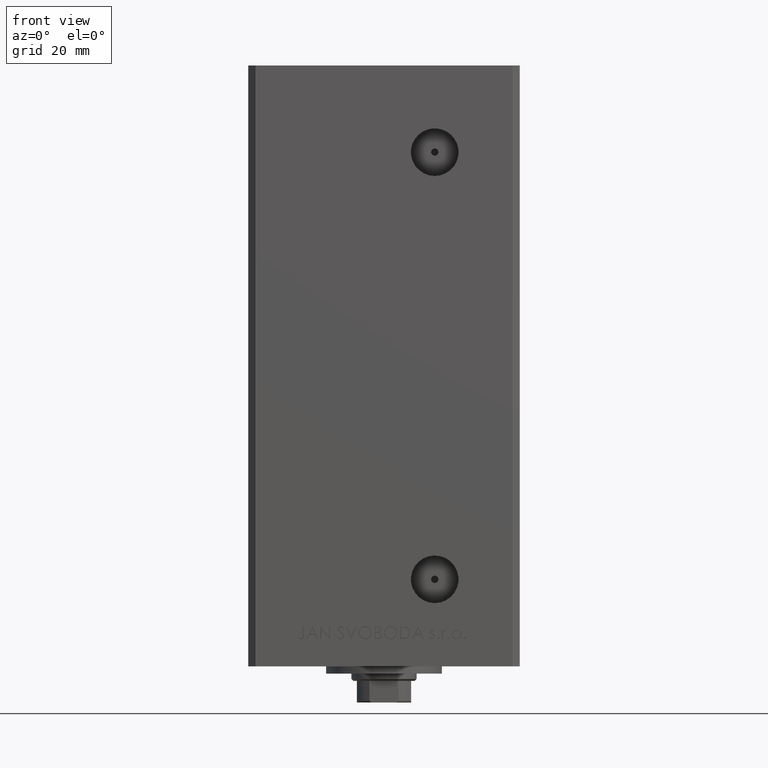
[diagram: clean part render]
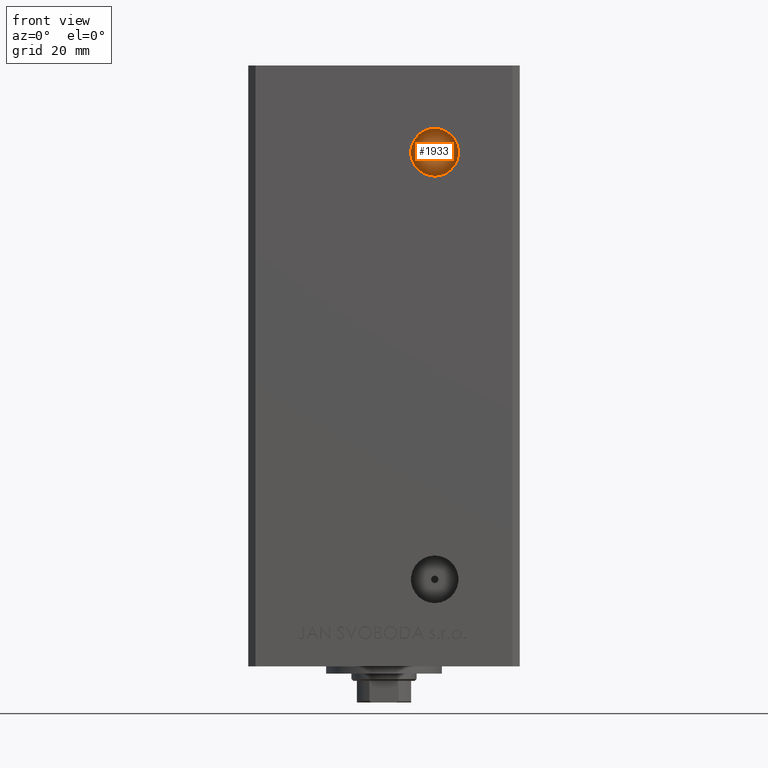
[diagram: same view with one face highlighted and labeled with its STEP entity id]
A machine part, front view. The second image highlights one B-rep face of the part: STEP entity #1933.
In plain terms, the highlighted planar face has unit normal (0, -1, 0).
Its self-contained STEP definition (entity closure, byte-faithful):
#794 = CARTESIAN_POINT ( 'NONE',  ( 13.99999999999999112, -19.50000000000000355, 126.0000000000000000 ) ) ;
#991 = CIRCLE ( 'NONE', #35476, 6.580000000000002736 ) ;
#1933 = ADVANCED_FACE ( 'NONE', ( #22465, #11414 ), #14442, .T. ) ;
#5692 = CARTESIAN_POINT ( 'NONE',  ( 13.99999999999999112, -19.50000000000000355, 128.0000000000000000 ) ) ;
#7795 = EDGE_CURVE ( 'NONE', #26949, #19409, #16047, .T. ) ;
#8165 = EDGE_LOOP ( 'NONE', ( #35556, #11257 ) ) ;
#10299 = CARTESIAN_POINT ( 'NONE',  ( 13.99999999999999112, -19.50000000000000355, 127.0000000000000000 ) ) ;
#10680 = DIRECTION ( 'NONE',  ( 0.000000000000000000, -0.000000000000000000, -1.000000000000000000 ) ) ;
#11019 = VERTEX_POINT ( 'NONE', #29560 ) ;
#11257 = ORIENTED_EDGE ( 'NONE', *, *, #35711, .F. ) ;
#11414 = FACE_OUTER_BOUND ( 'NONE', #8165, .T. ) ;
#13810 = EDGE_LOOP ( 'NONE', ( #31095, #27450 ) ) ;
#14442 = PLANE ( 'NONE',  #20004 ) ;
#15000 = AXIS2_PLACEMENT_3D ( 'NONE', #37875, #49198, #18788 ) ;
#15473 = EDGE_CURVE ( 'NONE', #19409, #26949, #15780, .T. ) ;
#15780 = CIRCLE ( 'NONE', #15000, 1.000000000000000888 ) ;
#16047 = CIRCLE ( 'NONE', #43345, 1.000000000000000888 ) ;
#18788 = DIRECTION ( 'NONE',  ( 0.000000000000000000, 0.000000000000000000, -1.000000000000000000 ) ) ;
#19409 = VERTEX_POINT ( 'NONE', #5692 ) ;
#20004 = AXIS2_PLACEMENT_3D ( 'NONE', #29773, #30016, #10680 ) ;
#20624 = CARTESIAN_POINT ( 'NONE',  ( 13.99999999999999112, -19.50000000000000355, 120.4200000000000017 ) ) ;
#22465 = FACE_BOUND ( 'NONE', #13810, .T. ) ;
#24535 = CARTESIAN_POINT ( 'NONE',  ( 13.99999999999999112, -19.50000000000000355, 127.0000000000000000 ) ) ;
#24779 = DIRECTION ( 'NONE',  ( 0.000000000000000000, 0.000000000000000000, -1.000000000000000000 ) ) ;
#26949 = VERTEX_POINT ( 'NONE', #794 ) ;
#26982 = VERTEX_POINT ( 'NONE', #20624 ) ;
#27450 = ORIENTED_EDGE ( 'NONE', *, *, #15473, .F. ) ;
#28425 = CARTESIAN_POINT ( 'NONE',  ( 13.99999999999999112, -19.50000000000000355, 127.0000000000000000 ) ) ;
#29560 = CARTESIAN_POINT ( 'NONE',  ( 13.99999999999999112, -19.50000000000000355, 133.5800000000000125 ) ) ;
#29773 = CARTESIAN_POINT ( 'NONE',  ( 0.000000000000000000, -19.50000000000000355, 0.000000000000000000 ) ) ;
#30016 = DIRECTION ( 'NONE',  ( 0.000000000000000000, -1.000000000000000000, 0.000000000000000000 ) ) ;
#30765 = CIRCLE ( 'NONE', #37178, 6.580000000000002736 ) ;
#31095 = ORIENTED_EDGE ( 'NONE', *, *, #7795, .F. ) ;
#31922 = EDGE_CURVE ( 'NONE', #26982, #11019, #991, .T. ) ;
#32204 = DIRECTION ( 'NONE',  ( -0.000000000000000000, 1.000000000000000000, -0.000000000000000000 ) ) ;
#35476 = AXIS2_PLACEMENT_3D ( 'NONE', #24535, #35844, #24779 ) ;
#35556 = ORIENTED_EDGE ( 'NONE', *, *, #31922, .F. ) ;
#35711 = EDGE_CURVE ( 'NONE', #11019, #26982, #30765, .T. ) ;
#35844 = DIRECTION ( 'NONE',  ( -0.000000000000000000, 1.000000000000000000, -0.000000000000000000 ) ) ;
#37178 = AXIS2_PLACEMENT_3D ( 'NONE', #28425, #32204, #47525 ) ;
#37875 = CARTESIAN_POINT ( 'NONE',  ( 13.99999999999999112, -19.50000000000000355, 127.0000000000000000 ) ) ;
#40943 = DIRECTION ( 'NONE',  ( 0.000000000000000000, -1.000000000000000000, 0.000000000000000000 ) ) ;
#43345 = AXIS2_PLACEMENT_3D ( 'NONE', #10299, #40943, #44704 ) ;
#44704 = DIRECTION ( 'NONE',  ( 0.000000000000000000, 0.000000000000000000, -1.000000000000000000 ) ) ;
#47525 = DIRECTION ( 'NONE',  ( 0.000000000000000000, 0.000000000000000000, -1.000000000000000000 ) ) ;
#49198 = DIRECTION ( 'NONE',  ( 0.000000000000000000, -1.000000000000000000, 0.000000000000000000 ) ) ;